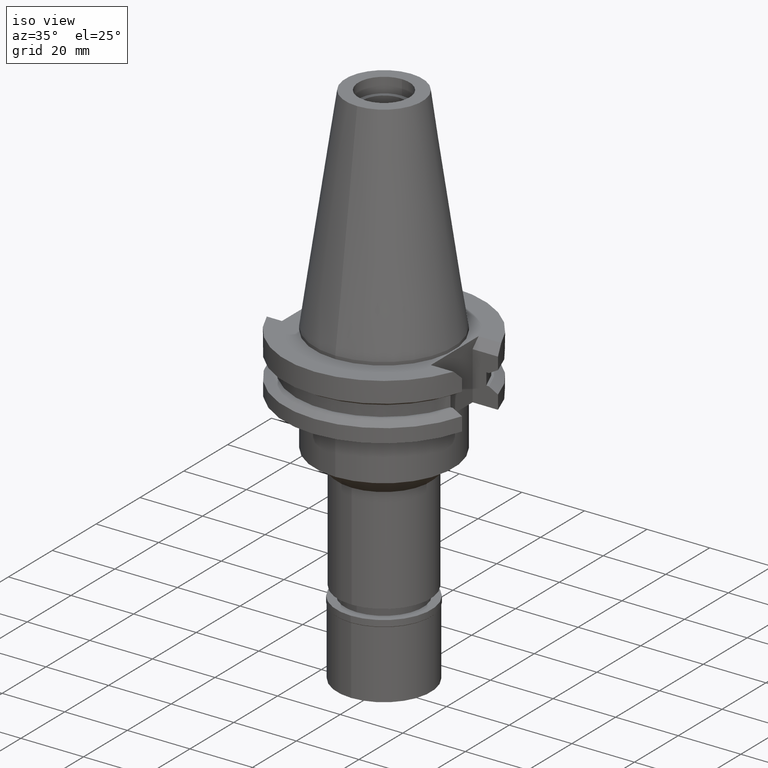
[diagram: clean part render]
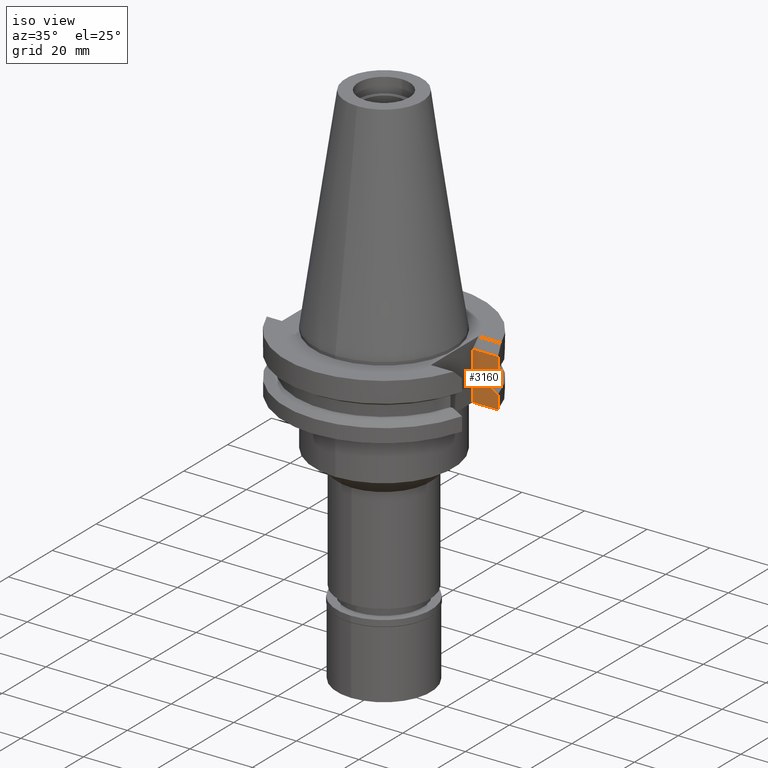
[diagram: same view with one face highlighted and labeled with its STEP entity id]
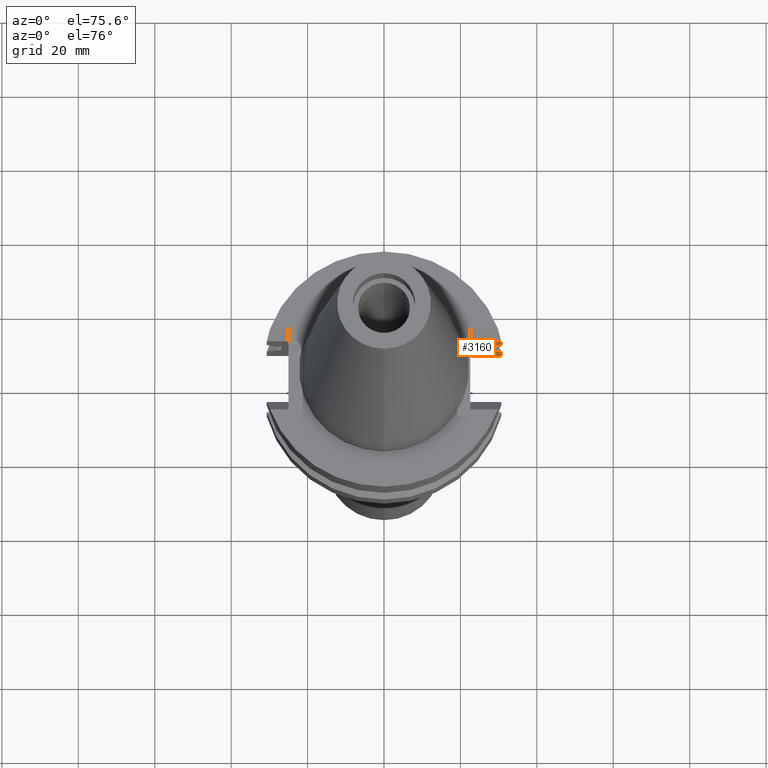
[diagram: same view with one face highlighted and labeled with its STEP entity id]
A machine part, iso view. The second image highlights one B-rep face of the part: STEP entity #3160.
A second angle (auxiliary view) of the same face is appended — the face is thin or edge-on in the first view.
In plain terms, the highlighted planar face has unit normal (0, 1, 0).
Its self-contained STEP definition (entity closure, byte-faithful):
#6 = ORIENTED_EDGE ( 'NONE', *, *, #1750, .T. ) ;
#38 = EDGE_CURVE ( 'NONE', #2377, #2250, #568, .T. ) ;
#49 = CARTESIAN_POINT ( 'NONE',  ( 22.57000000000000028, 8.189999999999999503, -3.700000000000000178 ) ) ;
#65 = EDGE_CURVE ( 'NONE', #1031, #135, #2545, .T. ) ;
#69 = EDGE_CURVE ( 'NONE', #2250, #135, #1379, .T. ) ;
#103 = CARTESIAN_POINT ( 'NONE',  ( 26.96361066326000255, 8.189999999999999503, -9.207499999999999574 ) ) ;
#135 = VERTEX_POINT ( 'NONE', #3295 ) ;
#156 = CARTESIAN_POINT ( 'NONE',  ( 30.34686603696999896, 8.189999874262001711, -14.47034897747999871 ) ) ;
#159 = CARTESIAN_POINT ( 'NONE',  ( 22.57000000000000028, 8.189999999999999503, -19.05000000000000071 ) ) ;
#200 = CARTESIAN_POINT ( 'NONE',  ( 28.73156757295999952, 8.190000281807000349, -13.57152997160999952 ) ) ;
#250 = ORIENTED_EDGE ( 'NONE', *, *, #3248, .T. ) ;
#373 = DIRECTION ( 'NONE',  ( -8.605275550058993810E-09, 3.223046685768998598E-08, 0.9999999999999994449 ) ) ;
#411 = DIRECTION ( 'NONE',  ( 0.9999999999996974642, -7.777728146326984061E-07, -1.014979132602998372E-12 ) ) ;
#436 = CARTESIAN_POINT ( 'NONE',  ( 30.67550165945999652, 8.189999874262001711, -14.65366564546999939 ) ) ;
#518 = DIRECTION ( 'NONE',  ( -0.0000000000000000000, 1.000000000000000000, 0.0000000000000000000 ) ) ;
#568 = LINE ( 'NONE', #1602, #2576 ) ;
#787 = LINE ( 'NONE', #1311, #1485 ) ;
#810 = ORIENTED_EDGE ( 'NONE', *, *, #38, .T. ) ;
#952 = ORIENTED_EDGE ( 'NONE', *, *, #69, .T. ) ;
#954 = VECTOR ( 'NONE', #2075, 1000.000000000000000 ) ;
#972 = DIRECTION ( 'NONE',  ( 7.636193842225995573E-09, -2.860066349920998899E-08, 0.9999999999999995559 ) ) ;
#979 = VECTOR ( 'NONE', #373, 1000.000000000000114 ) ;
#994 = ORIENTED_EDGE ( 'NONE', *, *, #1398, .T. ) ;
#1031 = VERTEX_POINT ( 'NONE', #1367 ) ;
#1046 = FACE_OUTER_BOUND ( 'NONE', #1191, .T. ) ;
#1061 = ORIENTED_EDGE ( 'NONE', *, *, #1186, .T. ) ;
#1162 = LINE ( 'NONE', #3031, #1686 ) ;
#1186 = EDGE_CURVE ( 'NONE', #2286, #2321, #2784, .T. ) ;
#1191 = EDGE_LOOP ( 'NONE', ( #6, #1061, #2148, #810, #952, #2858, #2289, #994, #2984, #250 ) ) ;
#1222 = CARTESIAN_POINT ( 'NONE',  ( 27.78617704746000072, 8.189999360203000123, -13.04749999999999943 ) ) ;
#1240 = LINE ( 'NONE', #1549, #2055 ) ;
#1243 = PLANE ( 'NONE',  #2046 ) ;
#1311 = CARTESIAN_POINT ( 'NONE',  ( 22.57000000000000028, 8.189999999999999503, -19.05000000000000071 ) ) ;
#1361 = CARTESIAN_POINT ( 'NONE',  ( 29.66936067410982858, 8.189999748609606556, -8.162570072249781816 ) ) ;
#1362 = CARTESIAN_POINT ( 'NONE',  ( 30.67550165945999652, 8.189999874258001356, -7.601334354603999977 ) ) ;
#1367 = CARTESIAN_POINT ( 'NONE',  ( 30.67550165945999652, 8.189999874258001356, -7.601334354603999977 ) ) ;
#1379 = LINE ( 'NONE', #103, #3113 ) ;
#1394 = LINE ( 'NONE', #2630, #3294 ) ;
#1398 = EDGE_CURVE ( 'NONE', #2938, #1498, #1240, .T. ) ;
#1436 = CARTESIAN_POINT ( 'NONE',  ( 28.70626004134943798, 8.189998719048412923, -8.697957594012660110 ) ) ;
#1485 = VECTOR ( 'NONE', #1824, 1000.000000000000000 ) ;
#1487 = EDGE_CURVE ( 'NONE', #2377, #2321, #1394, .T. ) ;
#1498 = VERTEX_POINT ( 'NONE', #49 ) ;
#1518 = EDGE_CURVE ( 'NONE', #1031, #2938, #2615, .T. ) ;
#1549 = CARTESIAN_POINT ( 'NONE',  ( 30.67550162588999640, 8.189999999999999503, -3.700000000000000178 ) ) ;
#1552 = DIRECTION ( 'NONE',  ( 1.000000000000000000, 0.0000000000000000000, 0.0000000000000000000 ) ) ;
#1601 = CARTESIAN_POINT ( 'NONE',  ( 27.78617704746000072, 8.189999360203000123, -13.04749999999999943 ) ) ;
#1602 = CARTESIAN_POINT ( 'NONE',  ( 26.96361066326000255, 8.189999999999999503, -13.04749999999999943 ) ) ;
#1686 = VECTOR ( 'NONE', #972, 1000.000000000000000 ) ;
#1750 = EDGE_CURVE ( 'NONE', #2050, #2286, #1162, .T. ) ;
#1824 = DIRECTION ( 'NONE',  ( 1.000000000000000000, 0.0000000000000000000, 0.0000000000000000000 ) ) ;
#1842 = CARTESIAN_POINT ( 'NONE',  ( 30.67550165945999652, 8.189999874258001356, -7.601334354603999977 ) ) ;
#1850 = CARTESIAN_POINT ( 'NONE',  ( 30.67550162588999640, 8.189999999999999503, -3.700000000000000178 ) ) ;
#1860 = CARTESIAN_POINT ( 'NONE',  ( 26.96361066326000255, 8.189999999999999503, -13.04749999999999943 ) ) ;
#2025 = LINE ( 'NONE', #3052, #954 ) ;
#2046 = AXIS2_PLACEMENT_3D ( 'NONE', #2274, #518, #1552 ) ;
#2050 = VERTEX_POINT ( 'NONE', #2663 ) ;
#2055 = VECTOR ( 'NONE', #2826, 1000.000000000000000 ) ;
#2075 = DIRECTION ( 'NONE',  ( 0.0000000000000000000, 0.0000000000000000000, -1.000000000000000000 ) ) ;
#2148 = ORIENTED_EDGE ( 'NONE', *, *, #1487, .F. ) ;
#2250 = VERTEX_POINT ( 'NONE', #2894 ) ;
#2274 = CARTESIAN_POINT ( 'NONE',  ( 22.57000000000000028, 8.189999999999999503, -19.05000000000000071 ) ) ;
#2286 = VERTEX_POINT ( 'NONE', #2393 ) ;
#2289 = ORIENTED_EDGE ( 'NONE', *, *, #1518, .T. ) ;
#2321 = VERTEX_POINT ( 'NONE', #1601 ) ;
#2373 = DIRECTION ( 'NONE',  ( 0.0000000000000000000, 0.0000000000000000000, 1.000000000000000000 ) ) ;
#2377 = VERTEX_POINT ( 'NONE', #1860 ) ;
#2393 = CARTESIAN_POINT ( 'NONE',  ( 30.67550165945999652, 8.189999874262001711, -14.65366564546999939 ) ) ;
#2470 = CARTESIAN_POINT ( 'NONE',  ( 27.78617704684999978, 8.189999360230000747, -9.207500000000999663 ) ) ;
#2545 = B_SPLINE_CURVE_WITH_KNOTS ( 'NONE', 3,
 ( #1842, #1361, #1436, #2470 ),
 .UNSPECIFIED., .F., .F.,
 ( 4, 4 ),
 ( 0.0000000000000000000, 1.000000000000000000 ),
 .UNSPECIFIED. ) ;
#2576 = VECTOR ( 'NONE', #2373, 1000.000000000000000 ) ;
#2615 = LINE ( 'NONE', #1362, #979 ) ;
#2630 = CARTESIAN_POINT ( 'NONE',  ( 26.96361066326000255, 8.189999999999999503, -13.04749999999999943 ) ) ;
#2663 = CARTESIAN_POINT ( 'NONE',  ( 30.67550162588999640, 8.189999999999999503, -19.05000000000000071 ) ) ;
#2784 = B_SPLINE_CURVE_WITH_KNOTS ( 'NONE', 3,
 ( #436, #156, #3236, #200, #3283, #1222 ),
 .UNSPECIFIED., .F., .F.,
 ( 4, 1, 1, 4 ),
 ( 0.0000000000000000000, 0.3333333333333000081, 0.6666666666667000474, 1.000000000000000000 ),
 .UNSPECIFIED. ) ;
#2826 = DIRECTION ( 'NONE',  ( -1.000000000000000000, 0.0000000000000000000, 0.0000000000000000000 ) ) ;
#2858 = ORIENTED_EDGE ( 'NONE', *, *, #65, .F. ) ;
#2894 = CARTESIAN_POINT ( 'NONE',  ( 26.96361066326000255, 8.189999999999999503, -9.207499999999999574 ) ) ;
#2938 = VERTEX_POINT ( 'NONE', #1850 ) ;
#2984 = ORIENTED_EDGE ( 'NONE', *, *, #3166, .T. ) ;
#2997 = VERTEX_POINT ( 'NONE', #159 ) ;
#3031 = CARTESIAN_POINT ( 'NONE',  ( 30.67550162588999640, 8.189999999999999503, -19.05000000000000071 ) ) ;
#3052 = CARTESIAN_POINT ( 'NONE',  ( 22.57000000000000028, 8.189999999999999503, -3.700000000000000178 ) ) ;
#3113 = VECTOR ( 'NONE', #411, 1000.000000000000227 ) ;
#3160 = ADVANCED_FACE ( 'NONE', ( #1046 ), #1243, .F. ) ;
#3166 = EDGE_CURVE ( 'NONE', #1498, #2997, #2025, .T. ) ;
#3204 = DIRECTION ( 'NONE',  ( 0.9999999999996974642, -7.778063321207984226E-07, 3.973535324682991489E-13 ) ) ;
#3236 = CARTESIAN_POINT ( 'NONE',  ( 29.69466602441000092, 8.189999973371000053, -14.10693718659999973 ) ) ;
#3248 = EDGE_CURVE ( 'NONE', #2997, #2050, #787, .T. ) ;
#3283 = CARTESIAN_POINT ( 'NONE',  ( 28.09961621769999951, 8.189999360203000123, -13.22108101507000022 ) ) ;
#3294 = VECTOR ( 'NONE', #3204, 1000.000000000000227 ) ;
#3295 = CARTESIAN_POINT ( 'NONE',  ( 27.78617704684999978, 8.189999360230000747, -9.207500000000999663 ) ) ;